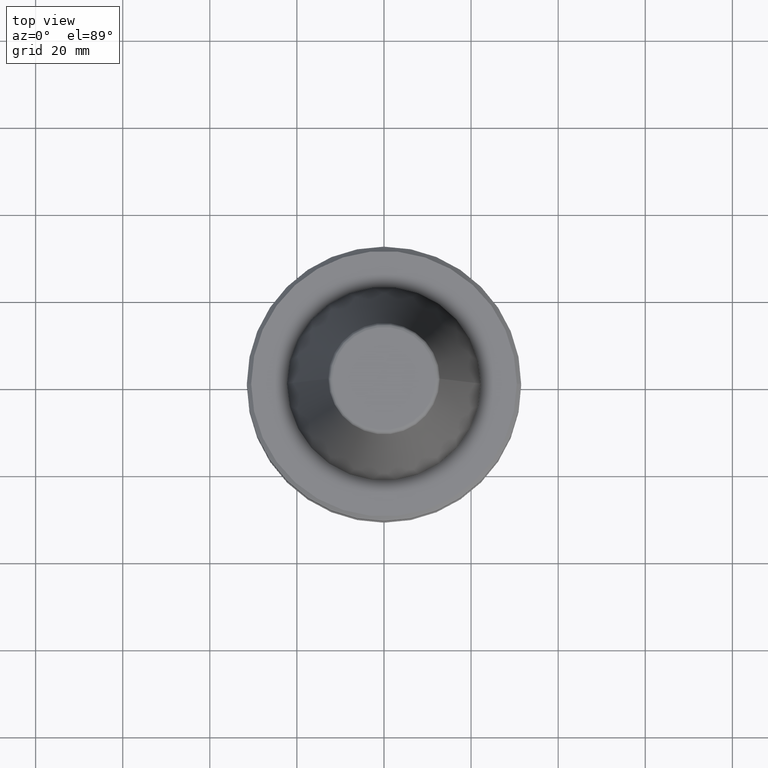
[diagram: clean part render]
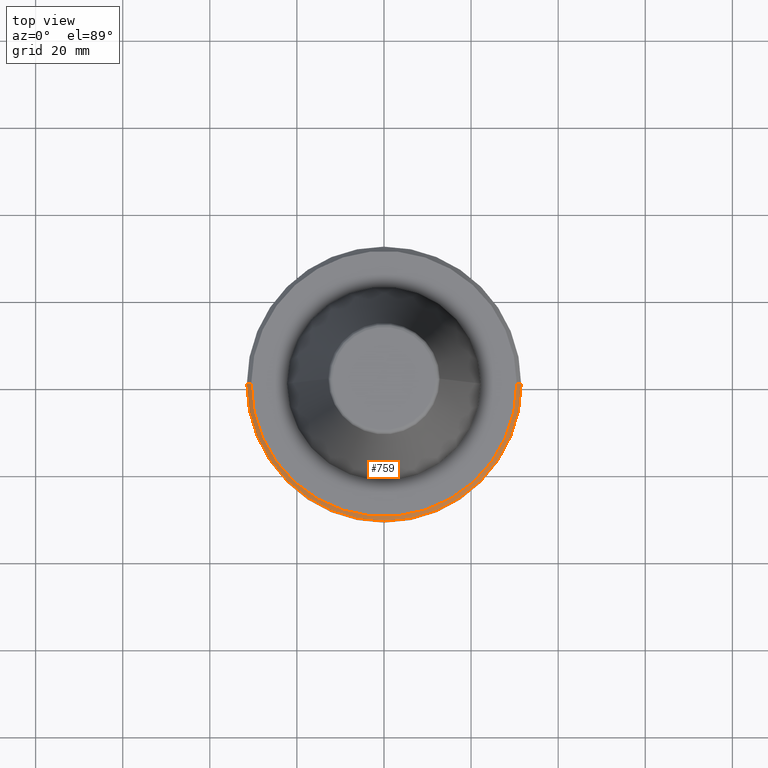
[diagram: same view with one face highlighted and labeled with its STEP entity id]
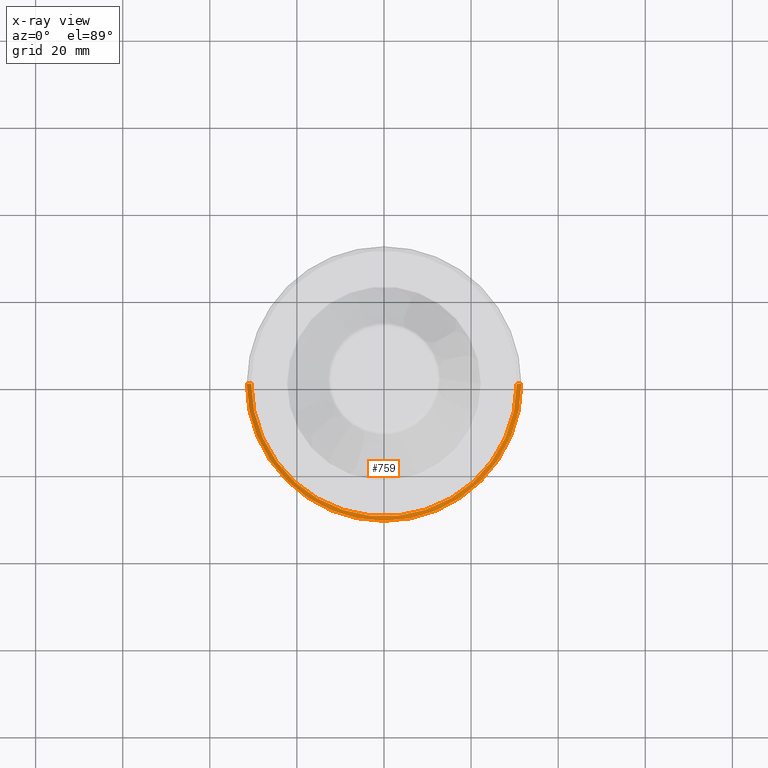
[diagram: x-ray of the same camera — body ghosted, the highlighted face saturated]
A machine part, top view. The second image highlights one B-rep face of the part: STEP entity #759.
The next image is the same camera in x-ray: the body ghosted, the highlighted face saturated — about 0% of this face is hidden behind the body in this view.
In plain terms, the highlighted conical surface has half-angle 45 deg.
Its self-contained STEP definition (entity closure, byte-faithful):
#6 = VERTEX_POINT ( 'NONE', #755 ) ;
#31 = CIRCLE ( 'NONE', #241, 31.50000000000008500 ) ;
#43 = DIRECTION ( 'NONE',  ( 0.0000000000000000000, 0.0000000000000000000, -1.000000000000000000 ) ) ;
#62 = DIRECTION ( 'NONE',  ( -0.0000000000000000000, -0.0000000000000000000, 1.000000000000000000 ) ) ;
#130 = ORIENTED_EDGE ( 'NONE', *, *, #673, .T. ) ;
#140 = VECTOR ( 'NONE', #922, 1000.000000000000000 ) ;
#142 = AXIS2_PLACEMENT_3D ( 'NONE', #421, #210, #461 ) ;
#145 = FACE_OUTER_BOUND ( 'NONE', #197, .T. ) ;
#194 = CARTESIAN_POINT ( 'NONE',  ( 30.49999999999997200, 3.796405077356798300E-015, -67.40000000000034700 ) ) ;
#197 = EDGE_LOOP ( 'NONE', ( #903, #252, #130, #265 ) ) ;
#201 = DIRECTION ( 'NONE',  ( -1.000000000000000000, 0.0000000000000000000, 0.0000000000000000000 ) ) ;
#210 = DIRECTION ( 'NONE',  ( -0.0000000000000000000, -0.0000000000000000000, 1.000000000000000000 ) ) ;
#241 = AXIS2_PLACEMENT_3D ( 'NONE', #699, #62, #543 ) ;
#252 = ORIENTED_EDGE ( 'NONE', *, *, #348, .F. ) ;
#265 = ORIENTED_EDGE ( 'NONE', *, *, #306, .T. ) ;
#306 = EDGE_CURVE ( 'NONE', #578, #872, #31, .T. ) ;
#348 = EDGE_CURVE ( 'NONE', #6, #671, #664, .T. ) ;
#353 = CARTESIAN_POINT ( 'NONE',  ( -31.50000000000008500, 3.857637417314172900E-015, -68.40000000000046000 ) ) ;
#386 = CONICAL_SURFACE ( 'NONE', #905, 30.49999999999997200, 0.7853981633974482800 ) ;
#421 = CARTESIAN_POINT ( 'NONE',  ( 0.0000000000000000000, 0.0000000000000000000, -67.40000000000034700 ) ) ;
#461 = DIRECTION ( 'NONE',  ( 1.000000000000000000, 0.0000000000000000000, 0.0000000000000000000 ) ) ;
#486 = VECTOR ( 'NONE', #754, 1000.000000000000000 ) ;
#543 = DIRECTION ( 'NONE',  ( 1.000000000000000000, 0.0000000000000000000, 0.0000000000000000000 ) ) ;
#578 = VERTEX_POINT ( 'NONE', #353 ) ;
#592 = EDGE_CURVE ( 'NONE', #671, #872, #775, .T. ) ;
#664 = CIRCLE ( 'NONE', #142, 30.49999999999997200 ) ;
#671 = VERTEX_POINT ( 'NONE', #194 ) ;
#673 = EDGE_CURVE ( 'NONE', #6, #578, #696, .T. ) ;
#696 = LINE ( 'NONE', #717, #486 ) ;
#699 = CARTESIAN_POINT ( 'NONE',  ( 0.0000000000000000000, 0.0000000000000000000, -68.40000000000046000 ) ) ;
#717 = CARTESIAN_POINT ( 'NONE',  ( -30.49999999999997200, 0.0000000000000000000, -67.40000000000034700 ) ) ;
#754 = DIRECTION ( 'NONE',  ( -0.7071067811865474600, 0.0000000000000000000, -0.7071067811865475700 ) ) ;
#755 = CARTESIAN_POINT ( 'NONE',  ( -30.49999999999997200, 0.0000000000000000000, -67.40000000000034700 ) ) ;
#759 = ADVANCED_FACE ( 'NONE', ( #145 ), #386, .T. ) ;
#771 = CARTESIAN_POINT ( 'NONE',  ( 0.0000000000000000000, 0.0000000000000000000, -67.40000000000034700 ) ) ;
#775 = LINE ( 'NONE', #1000, #140 ) ;
#872 = VERTEX_POINT ( 'NONE', #1030 ) ;
#903 = ORIENTED_EDGE ( 'NONE', *, *, #592, .F. ) ;
#905 = AXIS2_PLACEMENT_3D ( 'NONE', #771, #43, #201 ) ;
#922 = DIRECTION ( 'NONE',  ( 0.7071067811865474600, 8.659560562354931600E-017, -0.7071067811865475700 ) ) ;
#1000 = CARTESIAN_POINT ( 'NONE',  ( 30.49999999999997200, 3.735172737399423600E-015, -67.40000000000034700 ) ) ;
#1030 = CARTESIAN_POINT ( 'NONE',  ( 31.50000000000008500, 0.0000000000000000000, -68.40000000000046000 ) ) ;